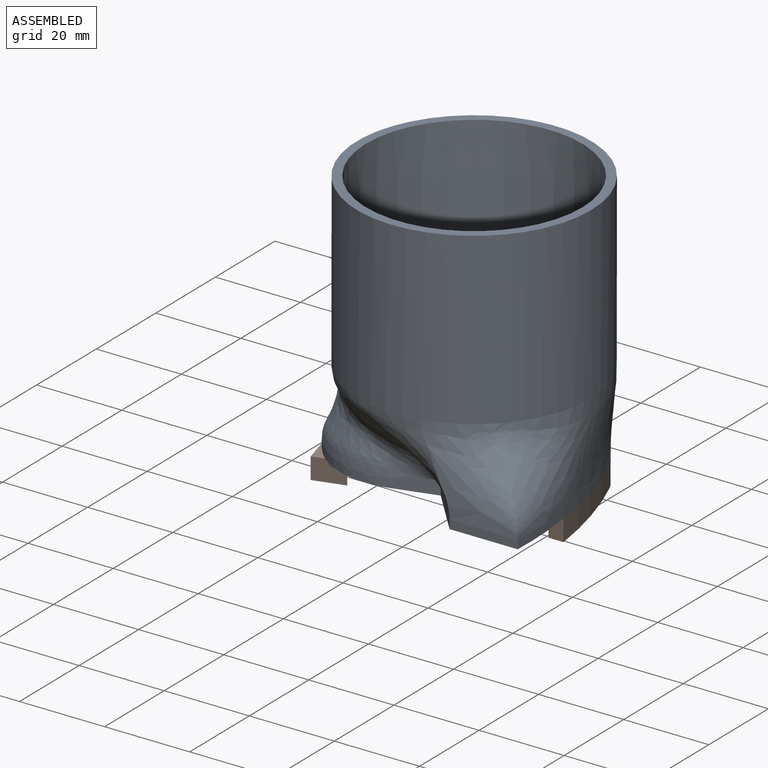
[diagram: assembled view]
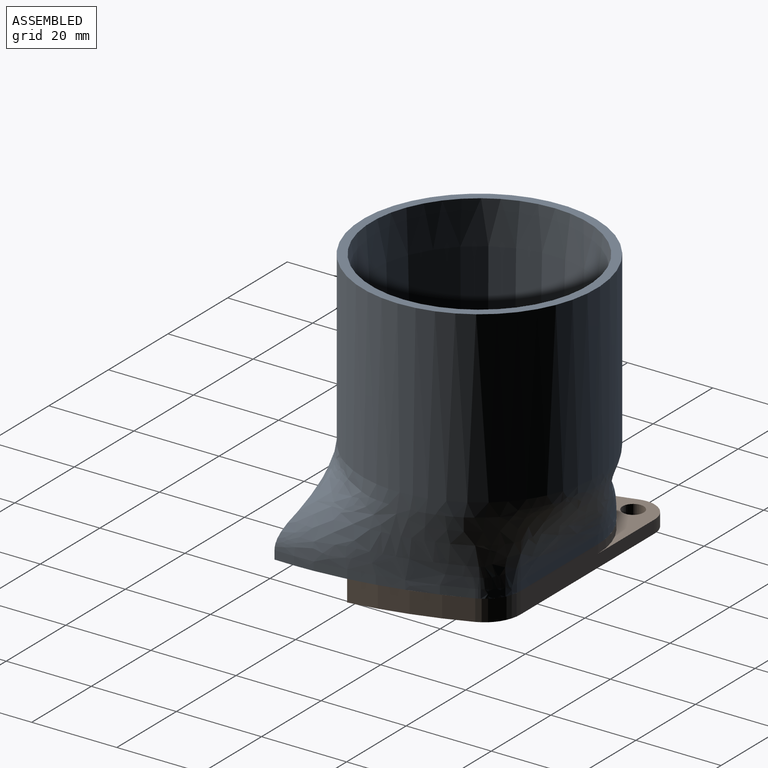
[diagram: assembled view, second angle]
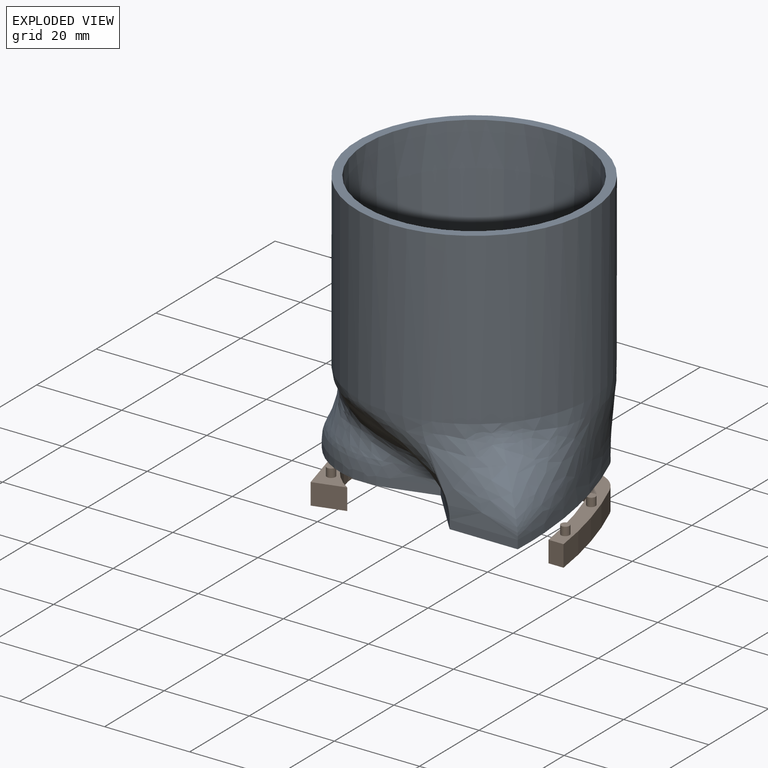
[diagram: exploded view]
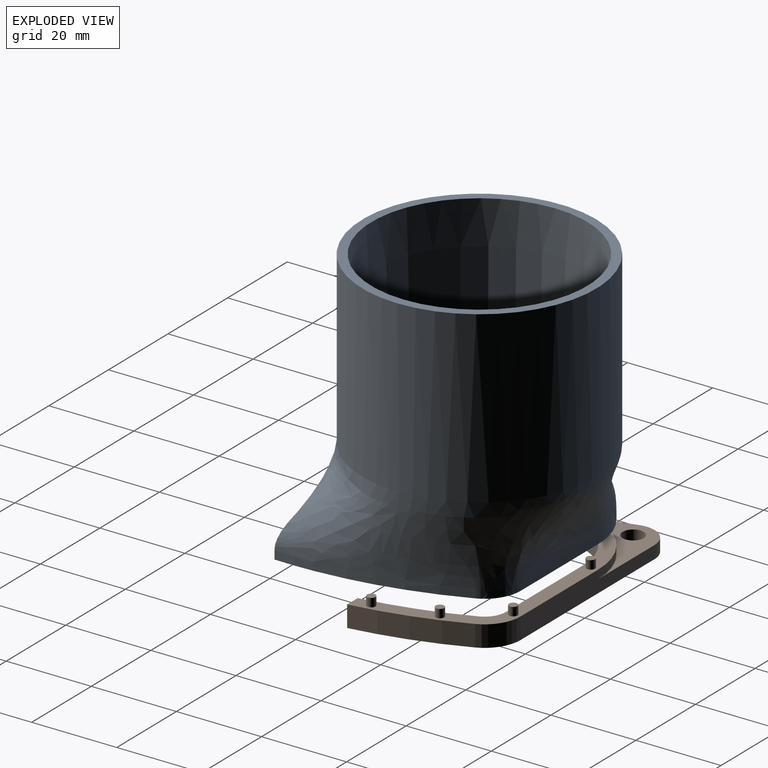
[diagram: exploded view, second angle]
ASSEMBLY  parts=2 mates=3
PART A: 36 faces, bbox 68.1x62.1x68 mm
  f0: cylinder r=27.5mm len=55mm, axis (0,0,-1), area 6911.5mm2, adj f1,f2,f3,f4
  f1: plane 55x55mm, normal (0,0,1), area 349.5mm2, adj f0,f5
  f2: bspline ~23.12x19.19mm, area 314.6mm2, adj f0,f3,f4,f12
  f3: bspline ~24.9x19mm, area 323mm2, adj f0,f2,f4,f13
  f4: bspline ~61.09x55.01mm, area 2891.3mm2, adj f0,f2,f3,f9,f10,f11,f14,f15
  f5: cone r=24mm half-angle=2deg, axis (0,0,1), area 6211mm2, adj f1,f6,f7,f8
  f6: offset ~30.18x26.19mm, area 237.9mm2, adj f5,f7,f8,f21
  f7: offset ~31.7x26mm, area 305.5mm2, adj f5,f6,f8,f20
  f8: offset ~68.09x62.01mm, area 2608.7mm2, adj f5,f6,f7,f19
  f9: extruded ~7.83x5.2mm, area 19.9mm2, adj f4,f10,f22,f23
  f10: extruded ~25.3x6.87mm, area 52.6mm2, adj f4,f9,f11,f23
  f11: extruded ~16.5x2mm, area 33.1mm2, adj f4,f10,f12,f23
  f12: plane 16.02x2mm, normal (0,-1,0), area 32mm2, adj f2,f11,f13,f23
  f13: plane 11.54x10.18mm, normal (-0.75,-0.66,0), area 30.8mm2, adj f3,f12,f14,f23
  f14: plane 10.6x3.37mm, normal (0.27,-0.96,0), area 20.9mm2, adj f4,f13,f15,f23
  f15: extruded ~17.8x4.57mm, area 37.9mm2, adj f4,f14,f16,f23
  f16: extruded ~5.93x4.76mm, area 15.3mm2, adj f4,f15,f17,f23
  f17: extruded ~7.73x2.16mm, area 16.2mm2, adj f4,f16,f18,f23
  f18: extruded ~20.78x19.5mm, area 63.8mm2, adj f4,f17,f22,f23
  f19: extruded ~53.99x40mm, area 274mm2, adj f8,f20,f21,f23
  f20: plane 12x10.58mm, normal (0.75,0.66,0), area 32mm2, adj f7,f19,f21,f23
  f21: plane 11x2mm, normal (0,1,0), area 22mm2, adj f6,f19,f20,f23
  f22: plane 27.86x3.86mm, normal (0,1,0), area 52mm2, adj f4,f9,f18,f23
  f23: plane 61.13x47mm, normal (0,0,-1), area 607.3mm2, adj f9,f10,f11,f12,f13,f14,f15,f16
  f24: cylinder r=1.05mm len=2.1mm, axis (0,0,-1), area 13.2mm2, adj f23,f25
  f25: plane 2.1x2.1mm, normal (0,0,-1), area 3.5mm2, adj f24
  f26: cylinder r=1.05mm len=2.1mm, axis (0,0,-1), area 13.2mm2, adj f23,f27
  f27: plane 2.1x2.1mm, normal (0,0,-1), area 3.5mm2, adj f26
  f28: cylinder r=1.05mm len=2.1mm, axis (0,0,-1), area 13.2mm2, adj f23,f29
  f29: plane 2.1x2.1mm, normal (0,0,-1), area 3.5mm2, adj f28
  f30: cylinder r=1.05mm len=2.1mm, axis (0,0,-1), area 13.2mm2, adj f23,f31
  f31: plane 2.1x2.1mm, normal (0,0,-1), area 3.5mm2, adj f30
  f32: cylinder r=1.05mm len=2.1mm, axis (0,0,-1), area 13.2mm2, adj f23,f33
  f33: plane 2.1x2.1mm, normal (0,0,-1), area 3.5mm2, adj f32
  f34: cylinder r=1.05mm len=2.1mm, axis (0,0,-1), area 13.2mm2, adj f23,f35
  f35: plane 2.1x2.1mm, normal (0,0,-1), area 3.5mm2, adj f34
PART B: 30 faces, bbox 65.6x35.2x7 mm
  f0: plane 9.25x3mm, normal (-0.96,-0.27,0), area 28.8mm2, adj f2,f6,f15,f17
  f1: plane 44.92x5mm, normal (0,1,0), area 186.8mm2, adj f2,f4,f14,f15,f16,f17
  f2: cylinder r=6mm len=7.62mm, axis (0,0,-1), area 33.2mm2, adj f0,f1,f15,f17
  f3: cylinder r=2.5mm len=5mm, axis (0,0,-1), area 47.1mm2, adj f15,f17
  f4: plane 60.21x35.24mm, normal (0,0,1), area 351.8mm2, adj f1,f5,f7,f8,f9,f10,f11,f12
  f5: plane 18.78x5.26mm, normal (-0.96,-0.27,0), area 88.5mm2, adj f4,f6,f7,f15,f16,f17
  f6: plane 3x1.44mm, normal (0.27,-0.96,0), area 4.5mm2, adj f0,f5,f15,f17
  f7: plane 7.19x5mm, normal (0.27,-0.96,0), area 37.3mm2, adj f4,f5,f8,f15
  f8: cylinder r=16mm len=29.73mm, axis (0,0,-1), area 208.1mm2, adj f4,f7,f9,f15
  f9: plane 26x5mm, normal (0,-1,0), area 130mm2, adj f4,f8,f10,f15
  f10: cylinder r=5mm len=5mm, axis (0,0,-1), area 29.3mm2, adj f4,f9,f11,f15
  f11: cylinder r=95.22mm len=23.94mm, axis (0,0,-1), area 124.5mm2, adj f4,f10,f12,f15
  f12: plane 5x3.53mm, normal (0,-1,0), area 17.7mm2, adj f4,f11,f13,f15
  f13: cylinder r=98.72mm len=25.3mm, axis (0,0,-1), area 131.5mm2, adj f4,f12,f14,f15
  f14: cylinder r=8.5mm len=7.83mm, axis (0,0,-1), area 49.8mm2, adj f1,f4,f13,f15
  f15: plane 65.63x35.24mm, normal (0,0,-1), area 503.9mm2, adj f0,f1,f2,f3,f5,f6,f7,f8
  f16: cylinder r=19.5mm len=20.78mm, axis (0,0,1), area 63.8mm2, adj f1,f4,f5,f17
  f17: plane 24.92x20.78mm, normal (0,0,1), area 133.3mm2, adj f0,f1,f2,f3,f5,f6,f16
  f18: cylinder r=1mm len=2mm, axis (0,0,-1), area 12.6mm2, adj f4,f19
  f19: plane 2x2mm, normal (0,0,1), area 3.1mm2, adj f18
  f20: cylinder r=1mm len=2mm, axis (0,0,-1), area 12.6mm2, adj f4,f21
  f21: plane 2x2mm, normal (0,0,1), area 3.1mm2, adj f20
  f22: cylinder r=1mm len=2mm, axis (0,0,-1), area 12.6mm2, adj f4,f23
  f23: plane 2x2mm, normal (0,0,1), area 3.1mm2, adj f22
  f24: cylinder r=1mm len=2mm, axis (0,0,-1), area 12.6mm2, adj f4,f25
  f25: plane 2x2mm, normal (0,0,1), area 3.1mm2, adj f24
  f26: cylinder r=1mm len=2mm, axis (0,0,-1), area 12.6mm2, adj f4,f27
  f27: plane 2x2mm, normal (0,0,1), area 3.1mm2, adj f26
  f28: cylinder r=1mm len=2mm, axis (0,0,-1), area 12.6mm2, adj f4,f29
  f29: plane 2x2mm, normal (0,0,1), area 3.1mm2, adj f28
PLACE A t=(-7.85,-1.88,-1.54)mm
PLACE B t=(-7.85,-1.88,-3.54)mm fixed
MATE cylindrical A.f34 <-> B.f22  axis (0,0,-1) through (30.47,-8.88,1.46)mm
MATE cylindrical A.f24 <-> B.f24  axis (0,0,-1) through (-21.66,-13.02,1.46)mm
MATE planar A.f23 <-> B.f4  axis (0,0,-1) through (5.66,-5.41,1.46)mm
